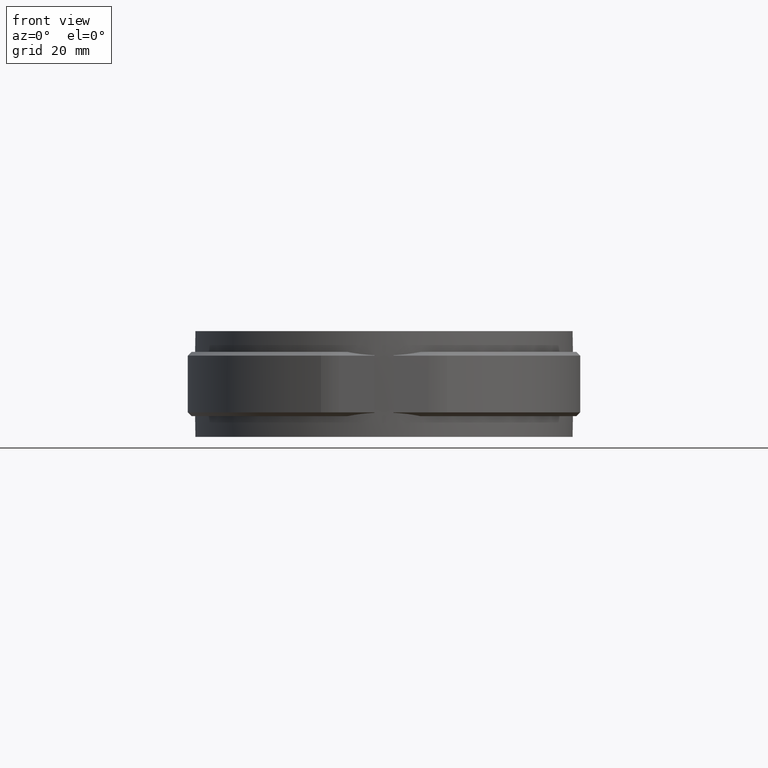
[diagram: clean part render]
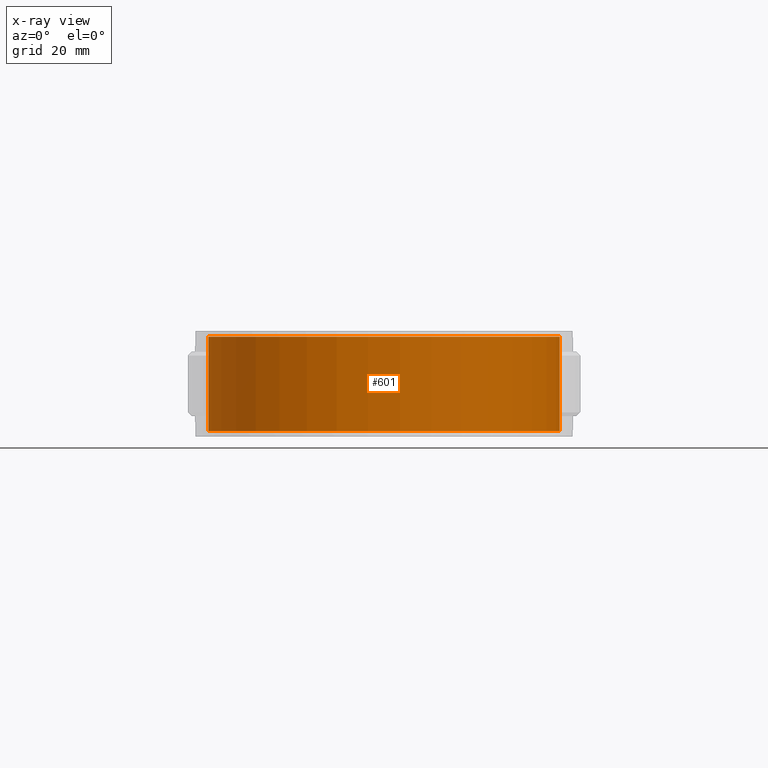
[diagram: x-ray — body ghosted, one internal face saturated and labeled with its STEP entity id]
A machine part, front view, then the same camera in x-ray: the body is ghosted and one INTERNAL B-rep face — a face not visible from any outside direction — is saturated and labeled: STEP entity #601.
In plain terms, the highlighted cylindrical surface (partial cylindrical patch) has radius 46.5 mm, axis along (0, 0, 1).
Its self-contained STEP definition (entity closure, byte-faithful):
#601 = ADVANCED_FACE( '', ( #1115 ), #1116, .T. );
#1115 = FACE_OUTER_BOUND( '', #2406, .T. );
#1116 = CYLINDRICAL_SURFACE( '', #2407, 46.5000000000000 );
#2406 = EDGE_LOOP( '', ( #5518, #5519, #5520, #5521 ) );
#2407 = AXIS2_PLACEMENT_3D( '', #5522, #5523, #5524 );
#5518 = ORIENTED_EDGE( '', *, *, #7780, .T. );
#5519 = ORIENTED_EDGE( '', *, *, #7761, .T. );
#5520 = ORIENTED_EDGE( '', *, *, #7783, .F. );
#5521 = ORIENTED_EDGE( '', *, *, #7554, .F. );
#5522 = CARTESIAN_POINT( '', ( 0.000000000000000, -6.93889390390723E-015, 14.0000000000000 ) );
#5523 = DIRECTION( '', ( 0.000000000000000, 0.000000000000000, 1.00000000000000 ) );
#5524 = DIRECTION( '', ( 0.107526881720430, 0.994202177480758, 0.000000000000000 ) );
#7554 = EDGE_CURVE( '', #8696, #8698, #8699, .F. );
#7761 = EDGE_CURVE( '', #9051, #9049, #9052, .F. );
#7780 = EDGE_CURVE( '', #8696, #9051, #9072, .T. );
#7783 = EDGE_CURVE( '', #8698, #9049, #9076, .T. );
#8696 = VERTEX_POINT( '', #12017 );
#8698 = VERTEX_POINT( '', #12019 );
#8699 = CIRCLE( '', #12020, 46.5000000000000 );
#9049 = VERTEX_POINT( '', #12926 );
#9051 = VERTEX_POINT( '', #12928 );
#9052 = CIRCLE( '', #12929, 46.5000000000000 );
#9072 = LINE( '', #12963, #12964 );
#9076 = LINE( '', #12968, #12969 );
#12017 = CARTESIAN_POINT( '', ( -6.57575757575757, 46.0326993810364, 12.5000000000000 ) );
#12019 = CARTESIAN_POINT( '', ( 6.57575757575757, 46.0326993810364, 12.5000000000000 ) );
#12020 = AXIS2_PLACEMENT_3D( '', #14637, #14638, #14639 );
#12926 = CARTESIAN_POINT( '', ( 6.57575757575757, 46.0326993810363, -12.5000000000000 ) );
#12928 = CARTESIAN_POINT( '', ( -6.57575757575757, 46.0326993810364, -12.5000000000000 ) );
#12929 = AXIS2_PLACEMENT_3D( '', #14851, #14852, #14853 );
#12963 = CARTESIAN_POINT( '', ( -6.57575757575757, 46.0326993810364, 14.0000000000000 ) );
#12964 = VECTOR( '', #14880, 1000.00000000000 );
#12968 = CARTESIAN_POINT( '', ( 6.57575757575757, 46.0326993810363, 14.0000000000000 ) );
#12969 = VECTOR( '', #14887, 1000.00000000000 );
#14637 = CARTESIAN_POINT( '', ( 0.000000000000000, -6.93889390390723E-015, 12.5000000000000 ) );
#14638 = DIRECTION( '', ( 0.000000000000000, 0.000000000000000, -1.00000000000000 ) );
#14639 = DIRECTION( '', ( -1.00000000000000, 0.000000000000000, 0.000000000000000 ) );
#14851 = CARTESIAN_POINT( '', ( 0.000000000000000, -6.93889390390723E-015, -12.5000000000000 ) );
#14852 = DIRECTION( '', ( 0.000000000000000, 0.000000000000000, -1.00000000000000 ) );
#14853 = DIRECTION( '', ( -1.00000000000000, 0.000000000000000, 0.000000000000000 ) );
#14880 = DIRECTION( '', ( 0.000000000000000, 0.000000000000000, -1.00000000000000 ) );
#14887 = DIRECTION( '', ( 0.000000000000000, 0.000000000000000, -1.00000000000000 ) );